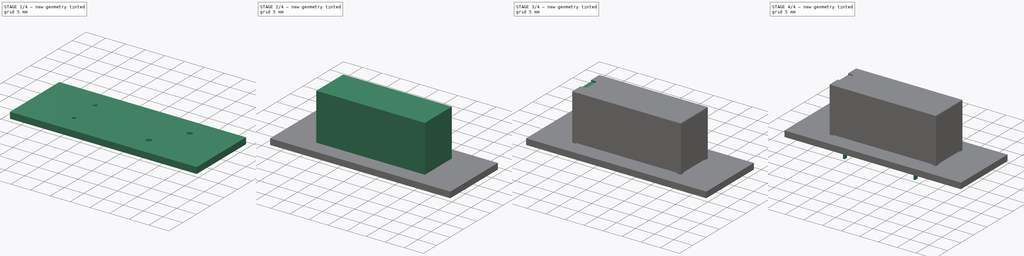
[diagram: build sequence overview — one tinted view per stage of 4, left to right]
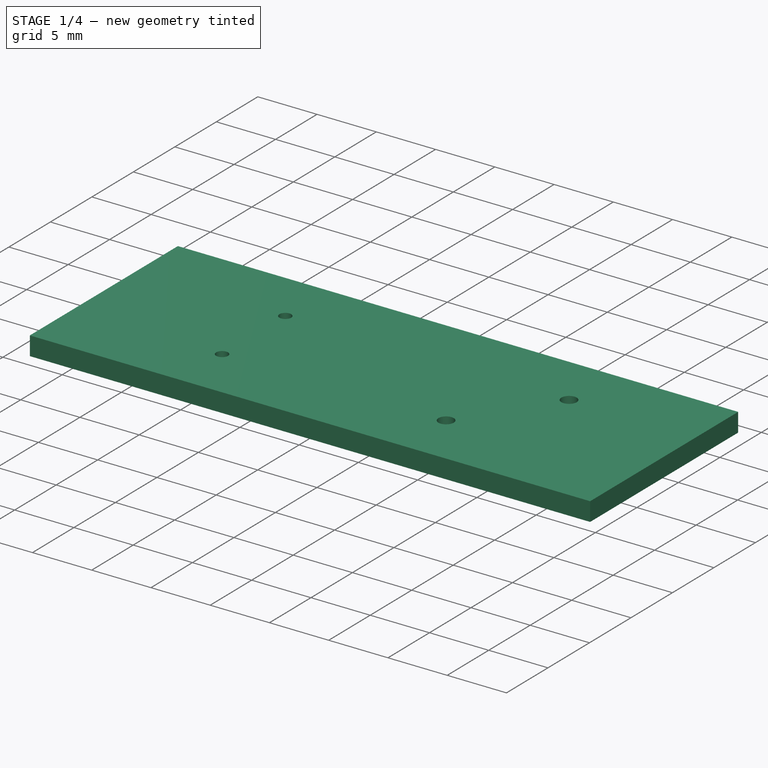
[diagram: stage 1 of 4 — iso view after this stage's code; geometry added in this stage tinted green]
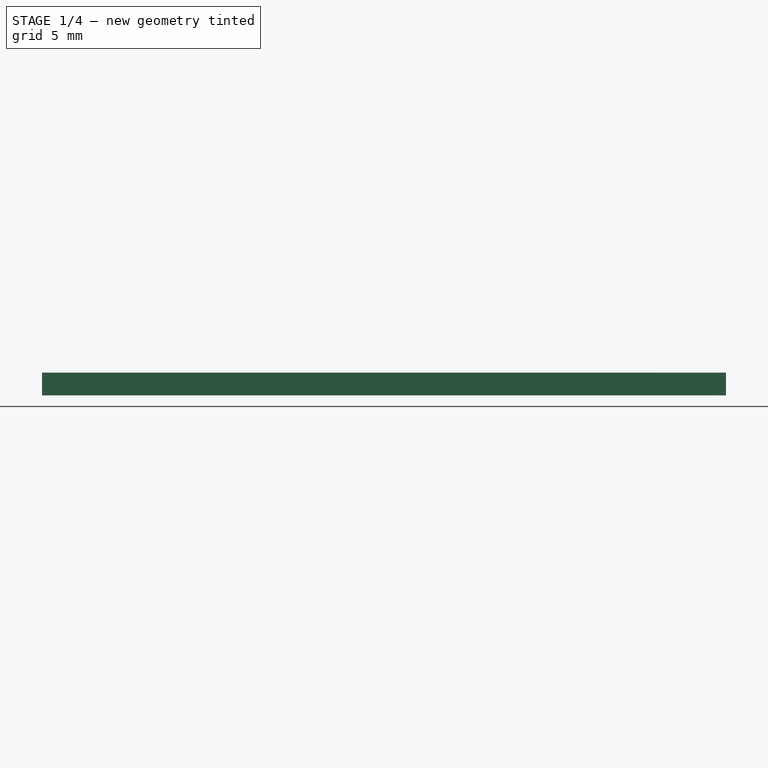
[diagram: stage 1 of 4 — front view after this stage's code; geometry added in this stage tinted green]
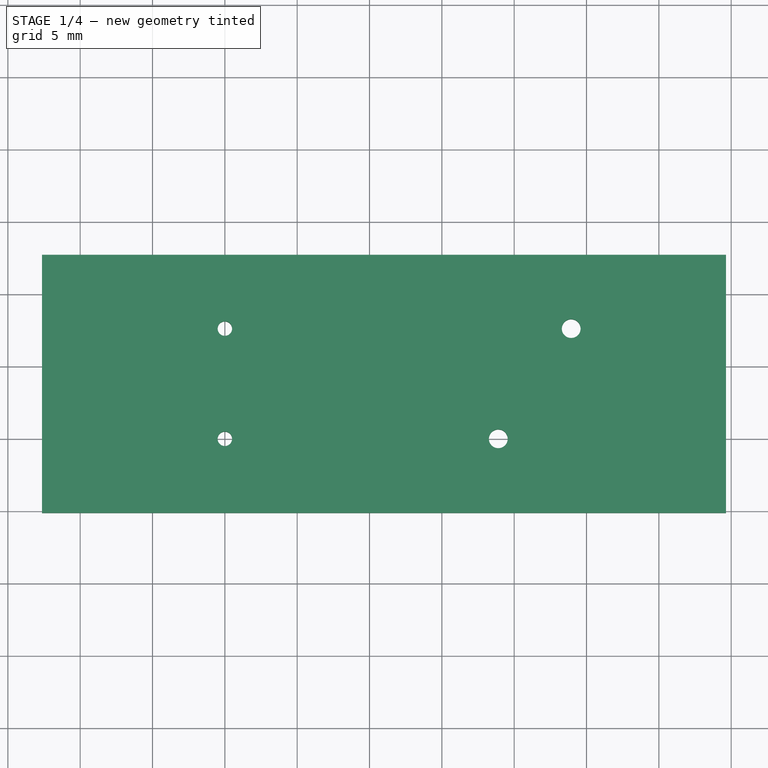
[diagram: stage 1 of 4 — top view after this stage's code; geometry added in this stage tinted green]
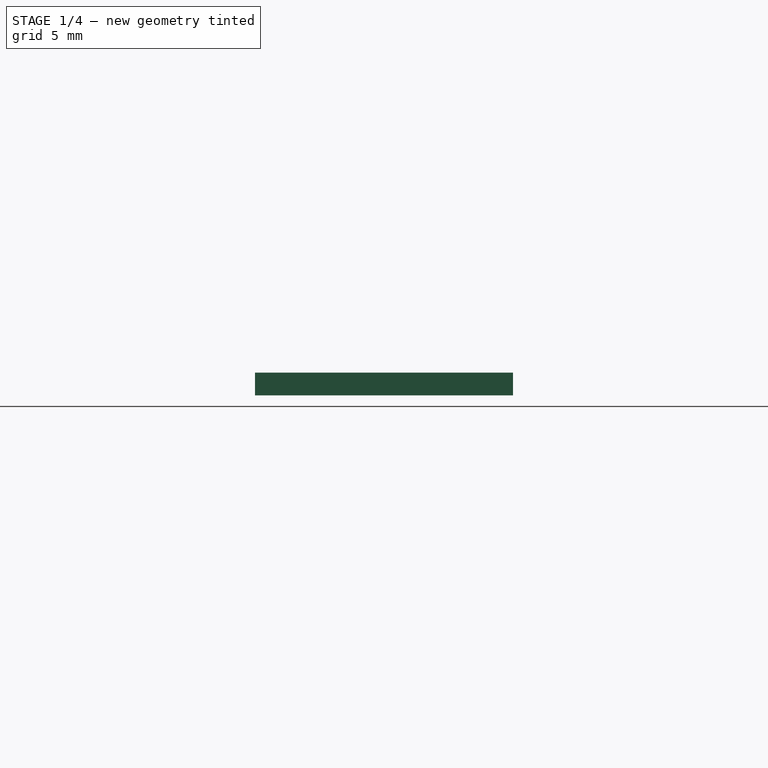
[diagram: stage 1 of 4 — right view after this stage's code; geometry added in this stage tinted green]
FCSTD DOCUMENT  (FreeCAD 0.16R6712 (Git))
Label: Relay_1-Form-B_Schrack-RYII_RM5mm
License: All rights reserved
LicenseURL: http://en.wikipedia.org/wiki/All_rights_reserved
objects: Part::FeaturePython×7, Sketcher::SketchObject×4, Part::Feature×3, PartDesign::Pad×2, App::DocumentObjectGroup×2, PartDesign::Pocket×2, PartDesign::Fillet×1, Part::MultiFuse×1
note: 24 computed .brp shape members not serialized (recipe doc carries the construction recipe); baked Part::Feature solids carry a one-line shape summary decoded from their .brp

FEATURE [Part::FeaturePython] THPs  label="PTHs"  # a2plus imported part (geometry in sourceFile) (typed FeaturePython)
  fixedPosition = true
FEATURE [Part::FeaturePython] newPCB  label="Pcb"  # a2plus imported part (geometry in sourceFile) (typed FeaturePython)
  fixedPosition = true
FEATURE [App::DocumentObjectGroup] Relay_1_Form_B_Schrack_RYII_RM5mm_fp
  Group = -> [FCrtYd_lines,FFab_lines,Filk_lines,TopPads,BotPads,THPs,newPCB]
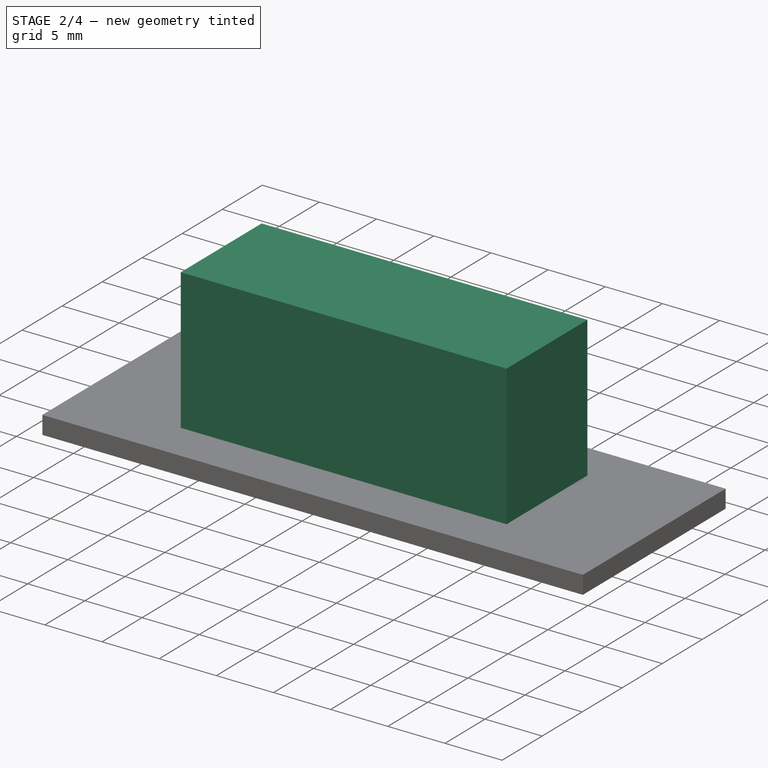
[diagram: stage 2 of 4 — iso view after this stage's code; geometry added in this stage tinted green]
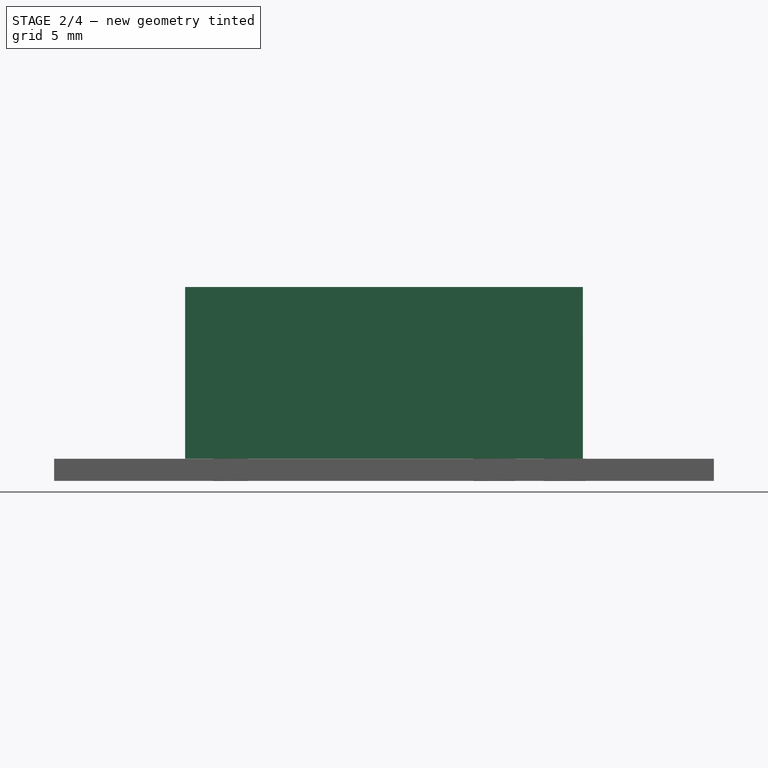
[diagram: stage 2 of 4 — front view after this stage's code; geometry added in this stage tinted green]
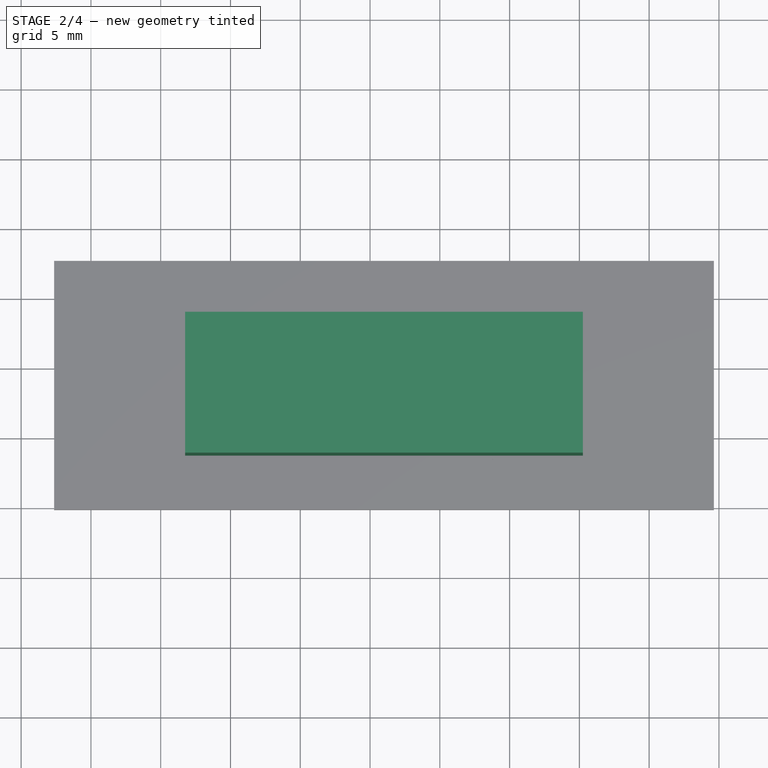
[diagram: stage 2 of 4 — top view after this stage's code; geometry added in this stage tinted green]
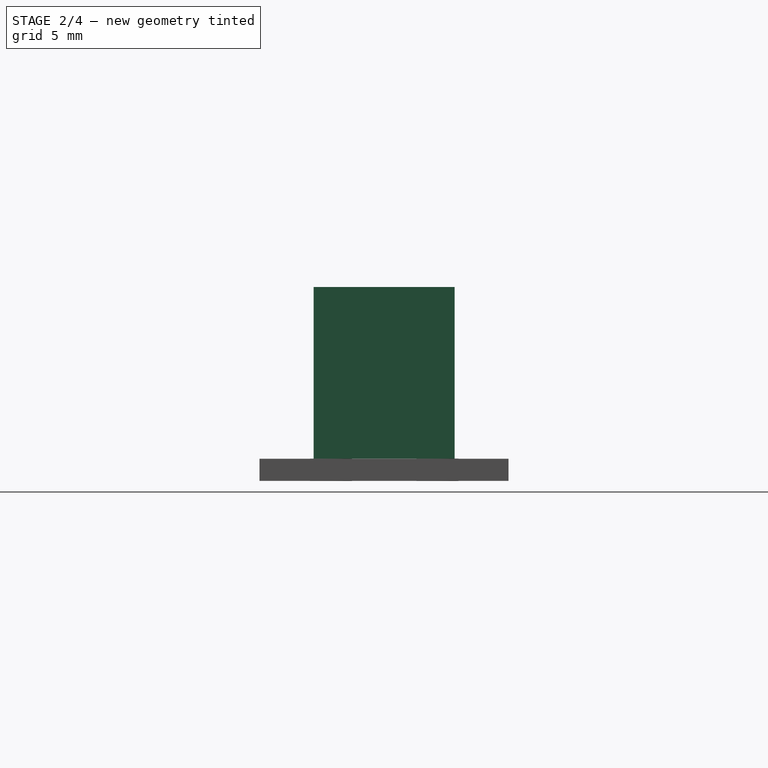
[diagram: stage 2 of 4 — right view after this stage's code; geometry added in this stage tinted green]
FEATURE [Part::Feature] FusionAxisZ1  label="Z"
  shape: bbox 0.8 x 0.8 x 14 mm, 8 faces (baked)
FEATURE [Part::Feature] FusionAxisY1  label="Y"
  Placement = pos=(0,0,0.05) rot=(-1,0,0;1.5708rad)
  shape: bbox 0.8 x 14 x 0.8 mm, 8 faces (baked)
FEATURE [Part::Feature] FusionAxisX1  label="X"
  Placement = pos=(0,-0.05,0) rot=(0,1,0;1.5708rad)
  shape: bbox 14 x 0.8 x 0.8 mm, 8 faces (baked)
FEATURE [App::DocumentObjectGroup] axis
  Group = -> [FusionAxisZ1,FusionAxisY1,FusionAxisX1]
FEATURE [Sketcher::SketchObject] Sketch001
  expr: Constraints[8] = (10.1 - 7.62) / 2
  sketch-geometry (4):
    g0: LineSegment StartX=-3.25 StartY=-1.24 StartZ=0 EndX=25.25 EndY=-1.24 EndZ=0
    g1: LineSegment StartX=25.25 StartY=-1.24 StartZ=0 EndX=25.25 EndY=8.86 EndZ=0
    g2: LineSegment StartX=25.25 StartY=8.86 StartZ=0 EndX=-3.25 EndY=8.86 EndZ=0
    g3: LineSegment StartX=-3.25 StartY=8.86 StartZ=0 EndX=-3.25 EndY=-1.24 EndZ=0
  constraints (12):
    c: Coincident(g0,g1)
    c: Coincident(g1,g2)
    c: Coincident(g2,g3)
    c: Coincident(g3,g0)
    c: Horizontal(g0)
    c: Horizontal(g2)
    c: Vertical(g1)
    c: Vertical(g3)
    c: DistanceY(g0,g-1) = 1.24
    c: DistanceY(g3,g3) = 10.1
    c: DistanceX(g2,g2) = 28.5
    c: DistanceX(g0,g-1) = 3.25
FEATURE [PartDesign::Pad] Pad001
  Length = 12.3
  Length2 = 100
  Sketch = -> Sketch001
  Type = 0
FEATURE [Part::FeaturePython] FCrtYd_lines  label="FCrtYd"  # a2plus imported part (geometry in sourceFile) (typed FeaturePython)
  fixedPosition = true
FEATURE [Part::FeaturePython] FFab_lines  label="FFab"  # a2plus imported part (geometry in sourceFile) (typed FeaturePython)
  fixedPosition = true
FEATURE [Part::FeaturePython] Filk_lines  label="FrontSilk"  # a2plus imported part (geometry in sourceFile) (typed FeaturePython)
  fixedPosition = true
FEATURE [Part::FeaturePython] TopPads  # a2plus imported part (geometry in sourceFile) (typed FeaturePython)
  fixedPosition = true
FEATURE [Part::FeaturePython] BotPads  # a2plus imported part (geometry in sourceFile) (typed FeaturePython)
  fixedPosition = true
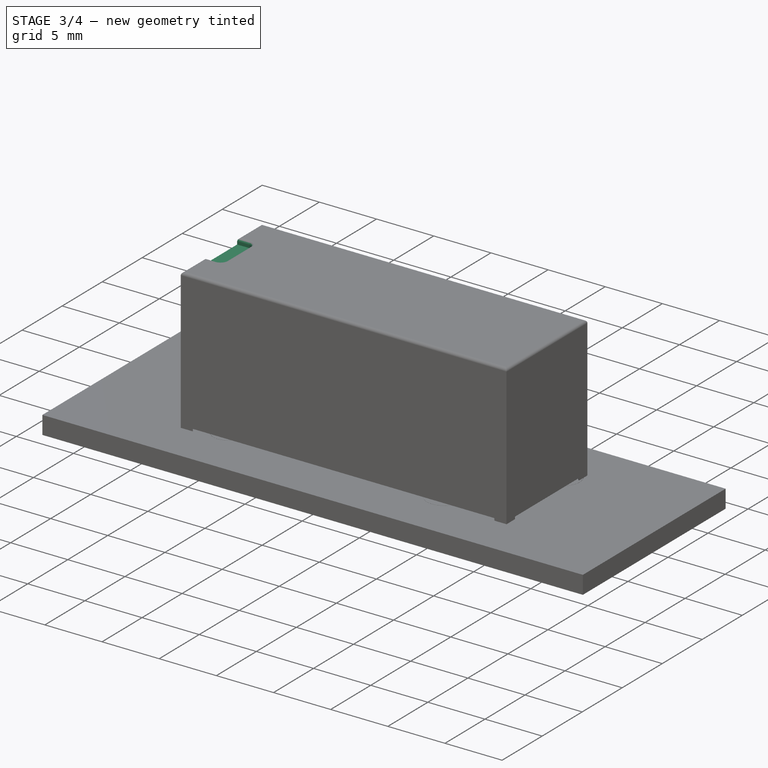
[diagram: stage 3 of 4 — iso view after this stage's code; geometry added in this stage tinted green]
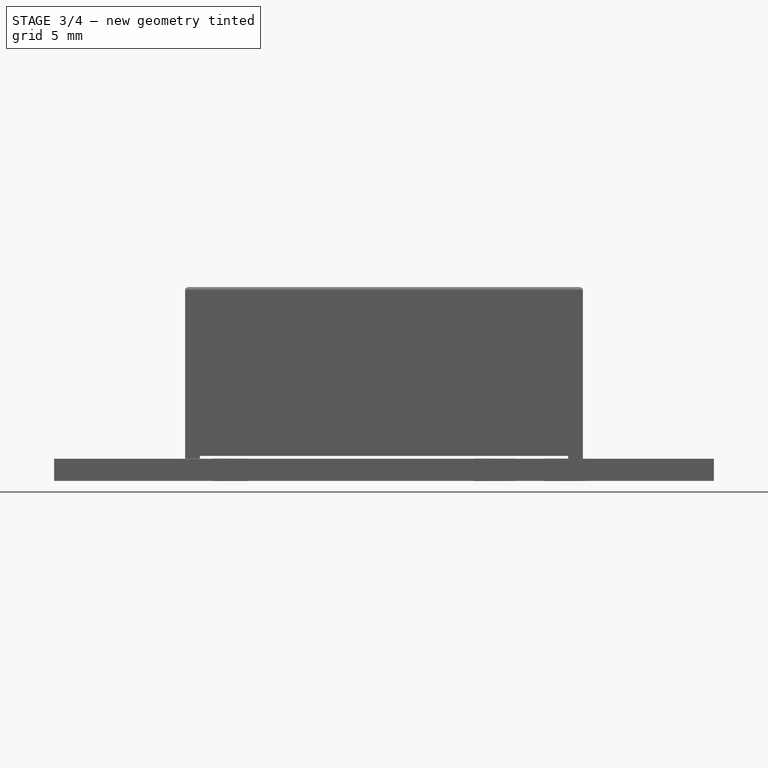
[diagram: stage 3 of 4 — front view after this stage's code; geometry added in this stage tinted green]
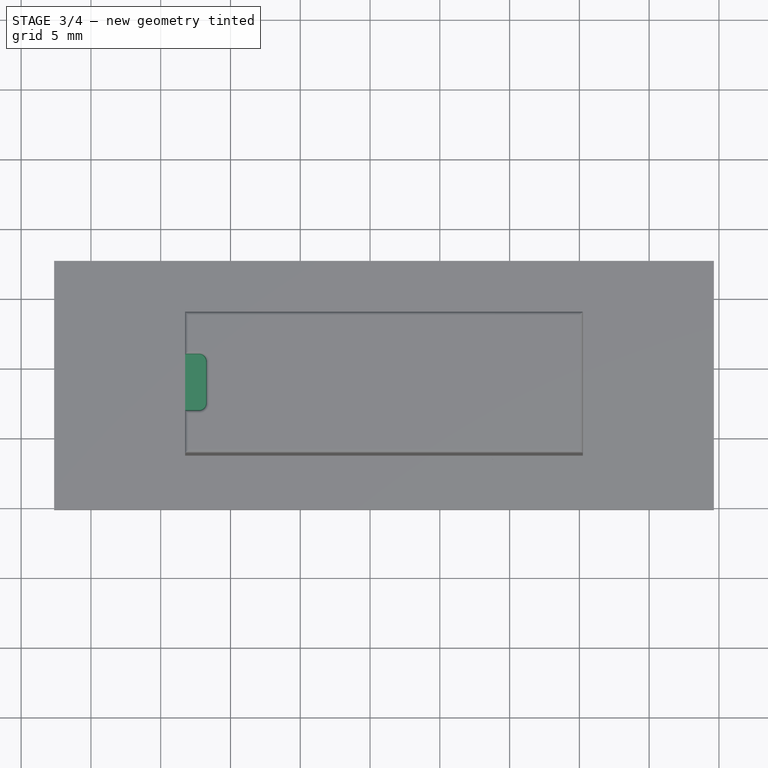
[diagram: stage 3 of 4 — top view after this stage's code; geometry added in this stage tinted green]
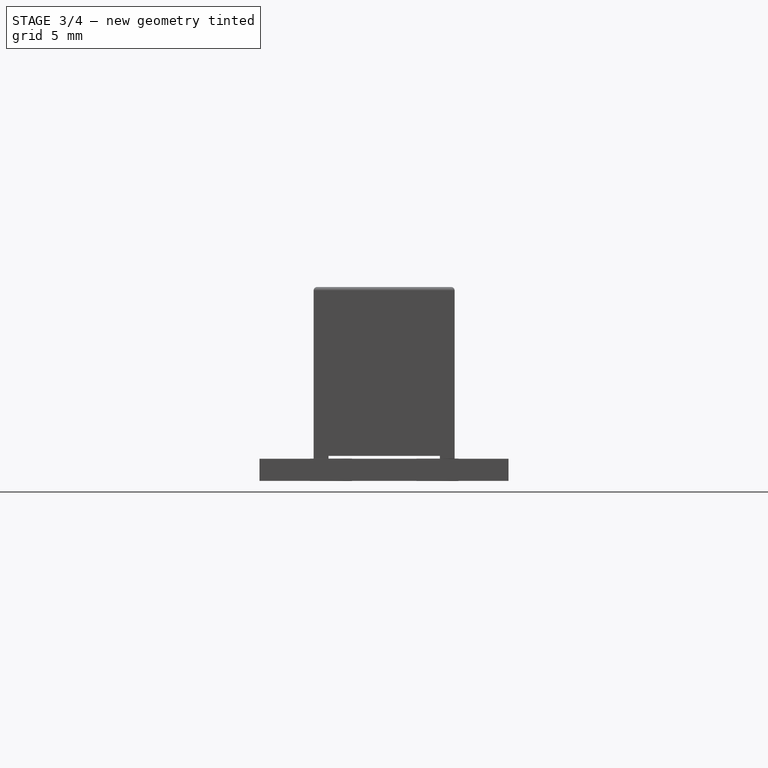
[diagram: stage 3 of 4 — right view after this stage's code; geometry added in this stage tinted green]
FEATURE [Sketcher::SketchObject] Sketch002
  ExternalGeometry = -> [Pad001]
  Placement = pos=(0,0,12.3) rot=(0,0,1;0rad)
  Support = -> Pad001 [Face6]
  sketch-geometry (7):
    g0: LineSegment StartX=-3.25 StartY=5.81 StartZ=0 EndX=-2.25 EndY=5.81 EndZ=0
    g1: LineSegment StartX=-1.75 StartY=5.31 StartZ=0 EndX=-1.75 EndY=2.31 EndZ=0
    g2: LineSegment StartX=-2.25 StartY=1.81 StartZ=0 EndX=-3.25 EndY=1.81 EndZ=0
    g3: LineSegment StartX=-3.25 StartY=1.81 StartZ=0 EndX=-3.25 EndY=5.81 EndZ=0
    g4: GeomPoint [constr] X=-3.25 Y=3.81 Z=0
    g5: ArcOfCircle CenterX=-2.25 CenterY=5.31 CenterZ=0 NormalX=0 NormalY=0 NormalZ=1 Radius=0.5 StartAngle=0 EndAngle=1.5708
    g6: ArcOfCircle CenterX=-2.25 CenterY=2.31 CenterZ=0 NormalX=0 NormalY=0 NormalZ=1 Radius=0.5 StartAngle=4.71239 EndAngle=6.28319
  constraints (16):
    c: Coincident(g2,g3)
    c: Coincident(g3,g0)
    c: Horizontal(g0)
    c: Horizontal(g2)
    c: Vertical(g1)
    c: Vertical(g3)
    c: Symmetric(g3,g3,g4)
    c: Symmetric(g-3,g-3,g4)
    c: Tangent(g0,g5) = 1.5708
    c: Tangent(g1,g5) = 1.5708
    c: Tangent(g2,g6) = 1.5708
    c: Tangent(g1,g6) = 1.5708
    c: Equal(g6,g5)
    c: Radius(g5) = 0.5
    c: DistanceX(g0,g1) = 1.5
    c: DistanceY(g2,g0) = 4
FEATURE [PartDesign::Pocket] Pocket
  Length = 0.5
  Sketch = -> Sketch002
  Type = 0
FEATURE [PartDesign::Fillet] Fillet
  Base = -> Pocket [Edge4,Edge14,Edge16,Edge10,Edge17,Edge18,Edge19,Edge6]
  Radius = 0.25
FEATURE [Sketcher::SketchObject] Sketch003
  ExternalGeometry = -> [Fillet]
  Placement = pos=(0,0,0) rot=(1,0,0;3.14159rad)
  Support = -> Fillet [Face4]
  sketch-geometry (8):
    g0: LineSegment StartX=-3.25 StartY=0.17934 StartZ=0 EndX=-2.18934 EndY=1.24 EndZ=0
    g1: LineSegment StartX=-2.18934 StartY=1.24 StartZ=0 EndX=24.1893 EndY=1.24 EndZ=0
    g2: LineSegment StartX=24.1893 StartY=1.24 StartZ=0 EndX=25.25 EndY=0.17934 EndZ=0
    g3: LineSegment StartX=25.25 StartY=0.17934 StartZ=0 EndX=25.25 EndY=-7.79934 EndZ=0
    g4: LineSegment StartX=25.25 StartY=-7.79934 StartZ=0 EndX=24.1893 EndY=-8.86 EndZ=0
    g5: LineSegment StartX=24.1893 StartY=-8.86 StartZ=0 EndX=-2.18934 EndY=-8.86 EndZ=0
    g6: LineSegment StartX=-2.18934 StartY=-8.86 StartZ=0 EndX=-3.25 EndY=-7.79934 EndZ=0
    g7: LineSegment StartX=-3.25 StartY=-7.79934 StartZ=0 EndX=-3.25 EndY=0.17934 EndZ=0
  constraints (24):
    c: PointOnObject(g0,g-5)
    c: PointOnObject(g0,g-3)
    c: Coincident(g1,g0)
    c: PointOnObject(g1,g-3)
    c: Coincident(g2,g1)
    c: PointOnObject(g2,g-6)
    c: Coincident(g3,g2)
    c: PointOnObject(g3,g-6)
    c: Coincident(g4,g3)
    c: PointOnObject(g4,g-4)
    c: Coincident(g5,g4)
    c: Horizontal(g5)
    c: Coincident(g6,g5)
    c: PointOnObject(g6,g-5)
    c: Coincident(g7,g6)
    c: Coincident(g7,g0)
    c: Equal(g0,g6)
    c: Equal(g6,g4)
    c: Equal(g4,g2)
    c: Angle(g0,g-3) = 2.35619
    c: Angle(g-4,g6) = 2.35619
    c: Angle(g-6,g4) = 2.35619
    c: Angle(g-6,g2) = 0.785398
    c: Distance(g0) = 1.5
FEATURE [PartDesign::Pocket] Pocket001
  Length = 0.2
  Sketch = -> Sketch003
  Type = 0
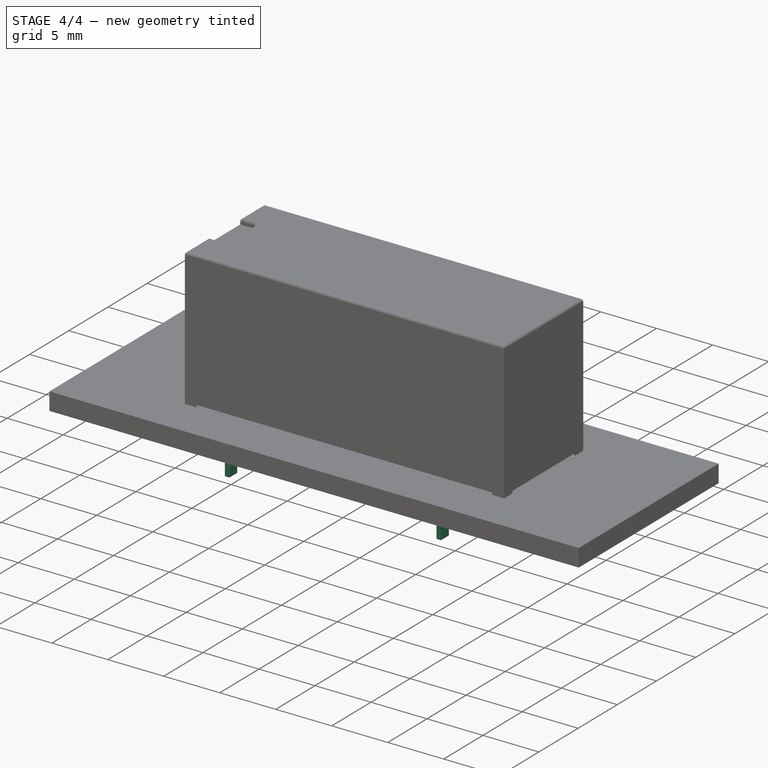
[diagram: stage 4 of 4 — iso view after this stage's code; geometry added in this stage tinted green]
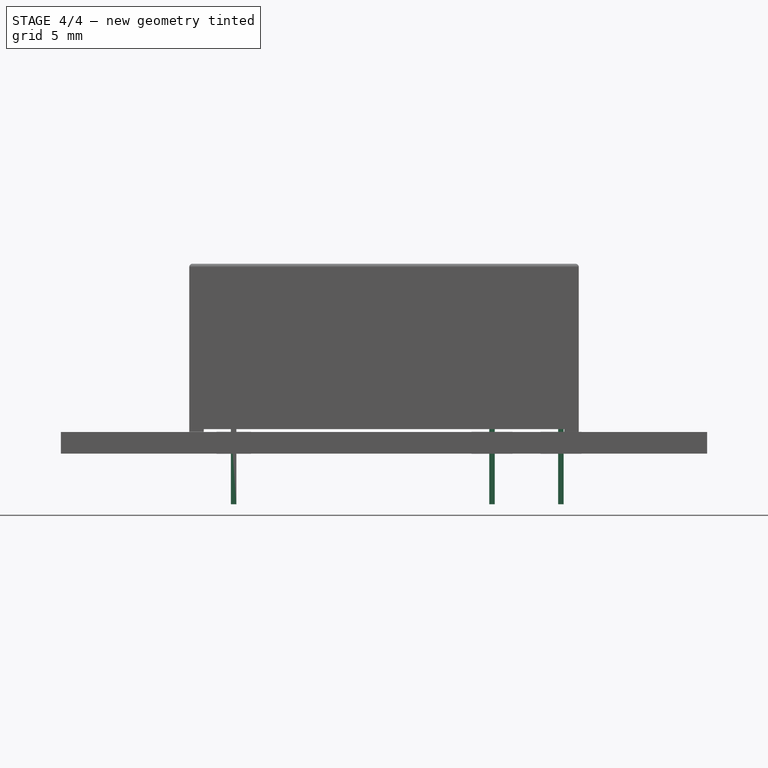
[diagram: stage 4 of 4 — front view after this stage's code; geometry added in this stage tinted green]
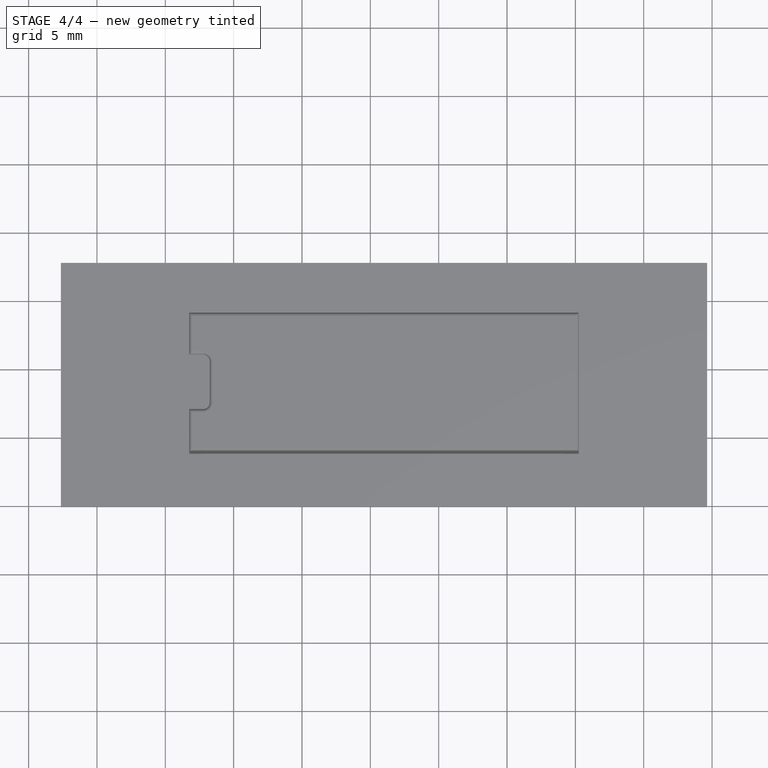
[diagram: stage 4 of 4 — top view after this stage's code; geometry added in this stage tinted green]
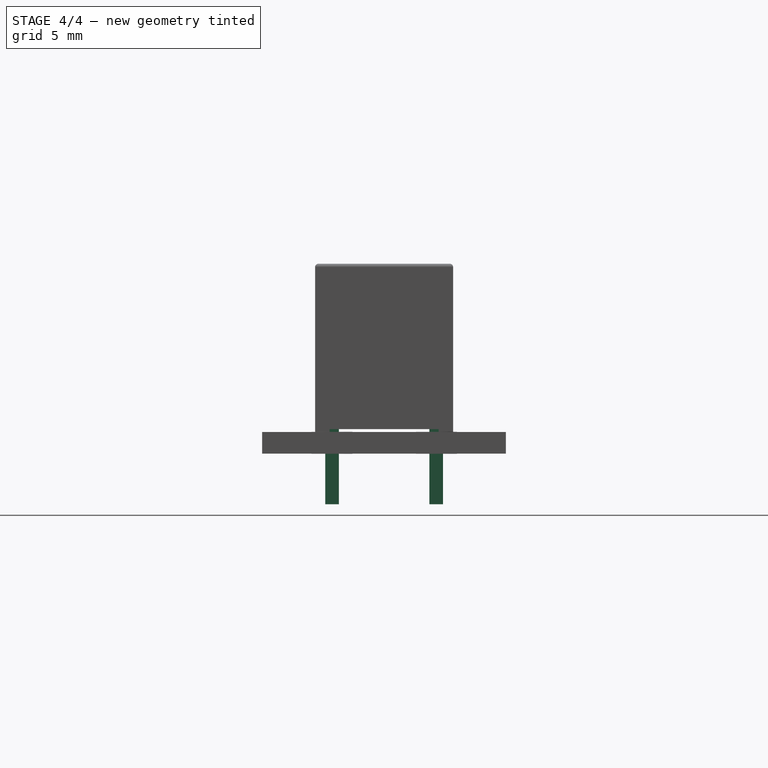
[diagram: stage 4 of 4 — right view after this stage's code; geometry added in this stage tinted green]
FEATURE [Sketcher::SketchObject] Sketch
  Placement = pos=(0,0,0.5) rot=(0,0,1;1.5708rad)
  expr: Constraints[54] = 18.9 + 5.04
  sketch-geometry (23):
    g0: LineSegment StartX=-0.5 StartY=0.2 StartZ=0 EndX=0.5 EndY=0.2 EndZ=0
    g1: LineSegment StartX=0.5 StartY=0.2 StartZ=0 EndX=0.5 EndY=-0.2 EndZ=0
    g2: LineSegment StartX=0.5 StartY=-0.2 StartZ=0 EndX=-0.5 EndY=-0.2 EndZ=0
    g3: LineSegment StartX=-0.5 StartY=-0.2 StartZ=0 EndX=-0.5 EndY=0.2 EndZ=0
    g4: GeomPoint [constr] X=0 Y=0.2 Z=0
    g5: GeomPoint [constr] X=0.5 Y=0 Z=0
    g6: LineSegment StartX=7.12 StartY=0.2 StartZ=0 EndX=8.12 EndY=0.2 EndZ=0
    g7: LineSegment StartX=8.12 StartY=0.2 StartZ=0 EndX=8.12 EndY=-0.2 EndZ=0
    g8: LineSegment StartX=8.12 StartY=-0.2 StartZ=0 EndX=7.12 EndY=-0.2 EndZ=0
    g9: LineSegment StartX=7.12 StartY=-0.2 StartZ=0 EndX=7.12 EndY=0.2 EndZ=0
    g10: LineSegment StartX=-0.5 StartY=-18.7 StartZ=0 EndX=0.5 EndY=-18.7 EndZ=0
    g11: LineSegment StartX=0.5 StartY=-18.7 StartZ=0 EndX=0.5 EndY=-19.1 EndZ=0
    g12: LineSegment StartX=0.5 StartY=-19.1 StartZ=0 EndX=-0.5 EndY=-19.1 EndZ=0
    g13: LineSegment StartX=-0.5 StartY=-19.1 StartZ=0 EndX=-0.5 EndY=-18.7 EndZ=0
    g14: LineSegment StartX=7.12 StartY=-23.74 StartZ=0 EndX=8.12 EndY=-23.74 EndZ=0
    g15: LineSegment StartX=8.12 StartY=-23.74 StartZ=0 EndX=8.12 EndY=-24.14 EndZ=0
    g16: LineSegment StartX=8.12 StartY=-24.14 StartZ=0 EndX=7.12 EndY=-24.14 EndZ=0
    g17: LineSegment StartX=7.12 StartY=-24.14 StartZ=0 EndX=7.12 EndY=-23.74 EndZ=0
    g18: LineSegment [constr] StartX=-0.5 StartY=0 StartZ=0 EndX=-0.5 EndY=-10.7946 EndZ=0
    g19: LineSegment [constr] StartX=-0.5 StartY=-10.7946 StartZ=0 EndX=-0.5 EndY=-23.94 EndZ=0
    g20: LineSegment [constr] StartX=-0.5 StartY=0 StartZ=0 EndX=7.12 EndY=0 EndZ=0
    g21: LineSegment [constr] StartX=-0.5 StartY=-23.94 StartZ=0 EndX=7.12 EndY=-23.94 EndZ=0
    g22: GeomPoint [constr] X=-0.5 Y=-18.9 Z=0
  constraints (63):
    c: Coincident(g0,g1)
    c: Coincident(g1,g2)
    c: Coincident(g2,g3)
    c: Coincident(g3,g0)
    c: Horizontal(g0)
    c: Horizontal(g2)
    c: Vertical(g1)
    c: Vertical(g3)
    c: PointOnObject(g4,g0)
    c: PointOnObject(g5,g-1)
    c: Symmetric(g1,g1,g5)
    c: Symmetric(g0,g0,g4)
    c: PointOnObject(g4,g-2)
    c: DistanceY(g3,g3) = 0.4
    c: DistanceX(g0,g0) = 1
    c: Coincident(g6,g7)
    c: Coincident(g7,g8)
    c: Coincident(g8,g9)
    c: Coincident(g9,g6)
    c: Horizontal(g6)
    c: Horizontal(g8)
    c: Vertical(g7)
    c: Vertical(g9)
    c: Coincident(g10,g11)
    c: Coincident(g11,g12)
    c: Coincident(g12,g13)
    c: Coincident(g13,g10)
    c: Horizontal(g10)
    c: Horizontal(g12)
    c: Vertical(g11)
    c: Vertical(g13)
    c: Coincident(g14,g15)
    c: Coincident(g15,g16)
    c: Coincident(g16,g17)
    c: Coincident(g17,g14)
    c: Horizontal(g14)
    c: Horizontal(g16)
    c: Vertical(g15)
    c: Vertical(g17)
    c: Equal(g9,g17)
    c: PointOnObject(g18,g3)
    c: Symmetric(g3,g3,g18)
    c: Coincident(g20,g18)
    c: Horizontal(g20)
    c: Symmetric(g9,g9,g20)
    c: PointOnObject(g21,g17)
    c: Symmetric(g17,g17,g21)
    c: Horizontal(g21)
    c: Vertical(g19)
    c: Vertical(g18)
    c: DistanceX(g20,g20) = 7.62
    c: Equal(g14,g6)
    c: Equal(g6,g0)
    c: Equal(g3,g15)
    c: DistanceY(g19,g18) = 23.94
    c: DistanceX(g21,g21) = 7.62
    c: Coincident(g18,g19)
    c: Equal(g11,g17)
    c: Equal(g10,g14)
    c: Symmetric(g13,g13,g22)
    c: PointOnObject(g22,g19)
    c: DistanceY(g21,g22) = 5.04
    c: Coincident(g21,g19)
FEATURE [PartDesign::Pad] Pad
  Length = 5.8
  Length2 = 100
  Placement = pos=(0,0,0.5) rot=(0,0,1;1.5708rad)
  Reversed = true
  Sketch = -> Sketch
  Type = 0
FEATURE [Part::MultiFuse] Pad_mp_cp  label="Relay_1-Form-B_Schrack-RYII_RM5mm"
  Shapes = -> [Pad,Pocket001]
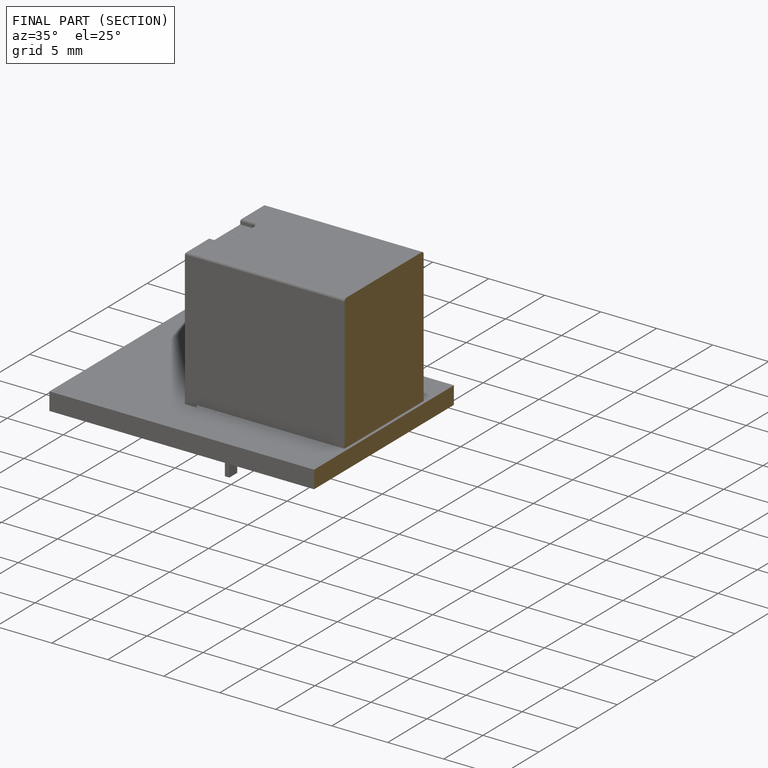
[diagram: finished part — half-section view (interior)]
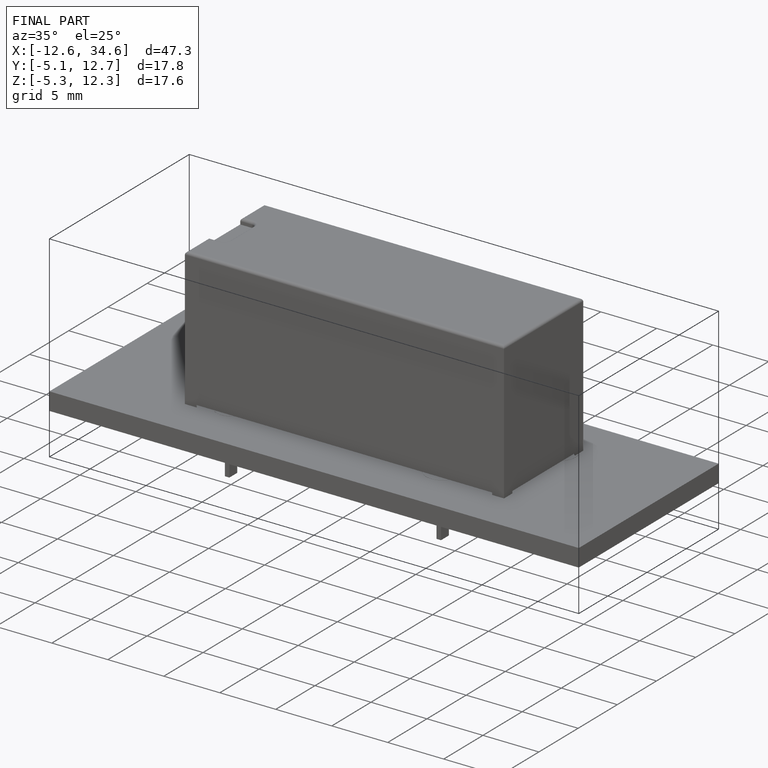
[diagram: finished part — iso view with bounding-box wireframe]
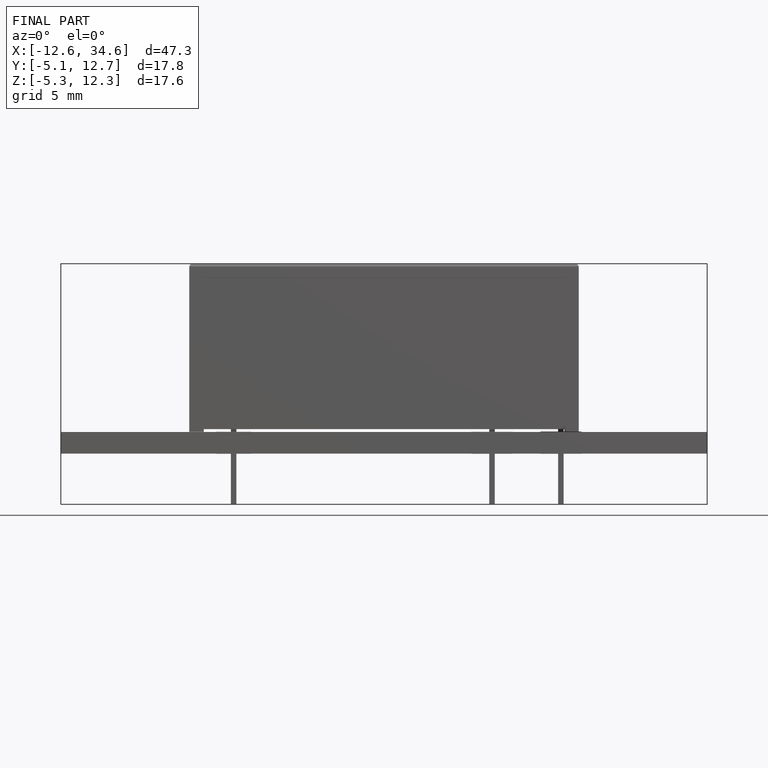
[diagram: finished part — front view with bounding-box wireframe]
